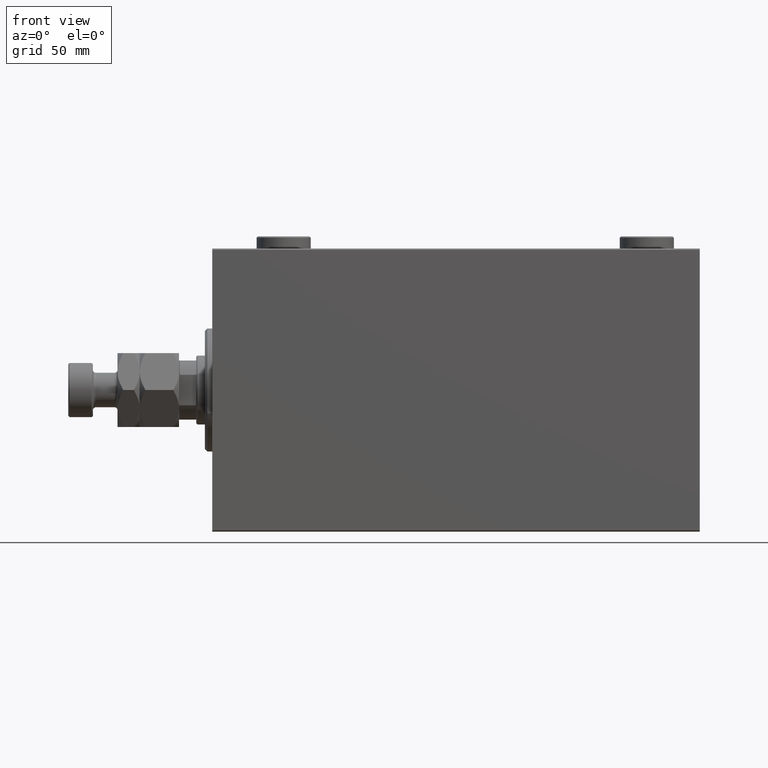
[diagram: clean part render]
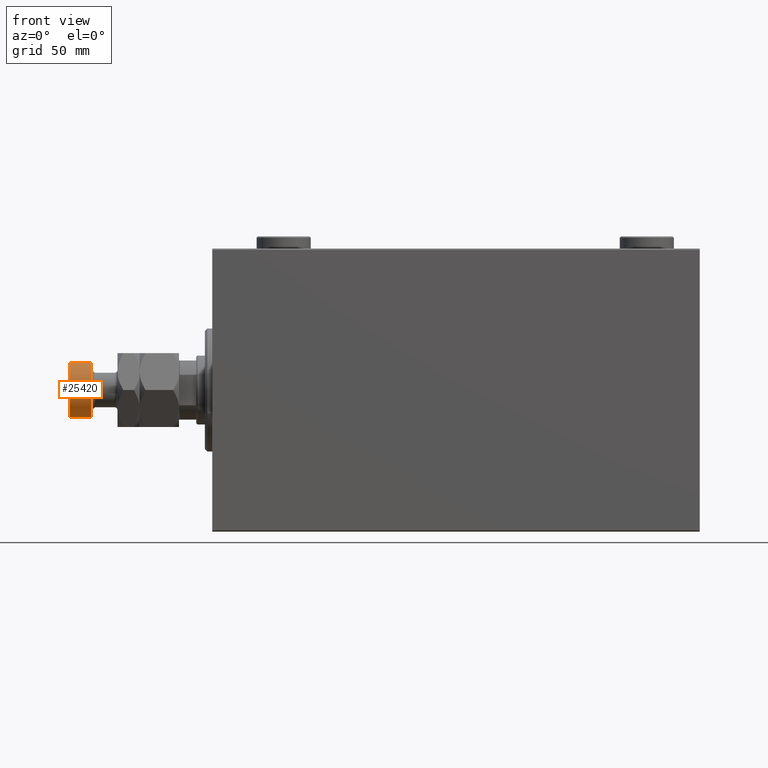
[diagram: same view with one face highlighted and labeled with its STEP entity id]
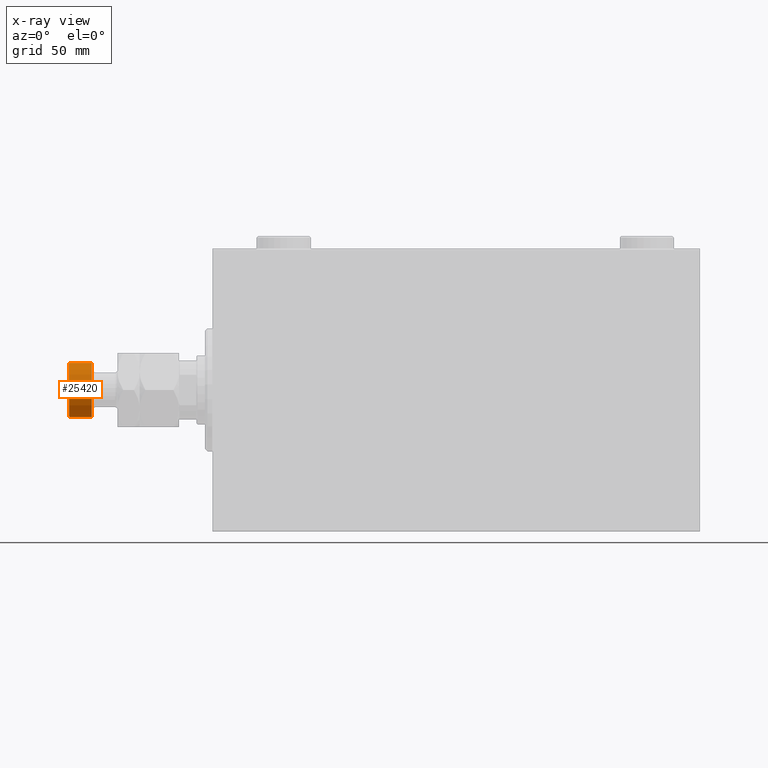
[diagram: x-ray of the same camera — body ghosted, the highlighted face saturated]
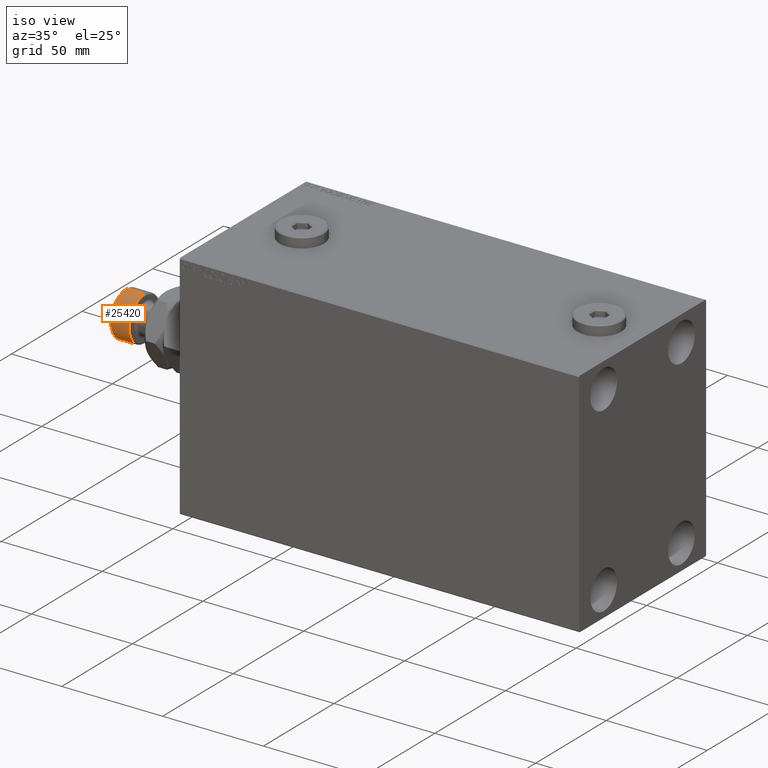
[diagram: same view with one face highlighted and labeled with its STEP entity id]
A machine part, front view. The second image highlights one B-rep face of the part: STEP entity #25420.
The next image is the same camera in x-ray: the body ghosted, the highlighted face saturated — about 0% of this face is hidden behind the body in this view.
A second angle (iso view) of the same face is appended — the face is thin or edge-on in the first view.
In plain terms, the highlighted cylindrical surface (edge-blend (fillet) strip) has radius 11 mm, axis along (1, -0, -0).
Its self-contained STEP definition (entity closure, byte-faithful):
#233 = CARTESIAN_POINT ( 'NONE',  ( -11.00000000000000000, 0.000000000000000000, 45.00000000000000711 ) ) ;
#1712 = CARTESIAN_POINT ( 'NONE',  ( 11.00000000000000000, 1.347111479062088405E-15, 44.50000000000001421 ) ) ;
#3420 = LINE ( 'NONE', #24544, #10523 ) ;
#5088 = AXIS2_PLACEMENT_3D ( 'NONE', #22659, #25978, #33370 ) ;
#5092 = FACE_OUTER_BOUND ( 'NONE', #16272, .T. ) ;
#10347 = CARTESIAN_POINT ( 'NONE',  ( 11.00000000000000000, 1.347111479062088405E-15, 35.50000000000001421 ) ) ;
#10523 = VECTOR ( 'NONE', #35724, 1000.000000000000000 ) ;
#11377 = LINE ( 'NONE', #233, #33942 ) ;
#13139 = ORIENTED_EDGE ( 'NONE', *, *, #27301, .T. ) ;
#13539 = DIRECTION ( 'NONE',  ( -0.000000000000000000, -0.000000000000000000, 1.000000000000000000 ) ) ;
#13940 = ORIENTED_EDGE ( 'NONE', *, *, #16843, .T. ) ;
#15080 = CYLINDRICAL_SURFACE ( 'NONE', #5088, 11.00000000000000000 ) ;
#16272 = EDGE_LOOP ( 'NONE', ( #46058, #22168, #13139, #13940 ) ) ;
#16843 = EDGE_CURVE ( 'NONE', #30912, #24325, #39087, .T. ) ;
#17014 = EDGE_CURVE ( 'NONE', #39631, #20245, #41244, .T. ) ;
#18585 = AXIS2_PLACEMENT_3D ( 'NONE', #43245, #13539, #46578 ) ;
#20245 = VERTEX_POINT ( 'NONE', #28025 ) ;
#20754 = AXIS2_PLACEMENT_3D ( 'NONE', #23929, #27497, #34633 ) ;
#22168 = ORIENTED_EDGE ( 'NONE', *, *, #17014, .T. ) ;
#22659 = CARTESIAN_POINT ( 'NONE',  ( 0.000000000000000000, 0.000000000000000000, 45.00000000000000711 ) ) ;
#23929 = CARTESIAN_POINT ( 'NONE',  ( 0.000000000000000000, 0.000000000000000000, 44.50000000000001421 ) ) ;
#24325 = VERTEX_POINT ( 'NONE', #10347 ) ;
#24544 = CARTESIAN_POINT ( 'NONE',  ( 11.00000000000000000, 1.347111479062088405E-15, 45.00000000000000711 ) ) ;
#25420 = ADVANCED_FACE ( 'NONE', ( #5092 ), #15080, .T. ) ;
#25978 = DIRECTION ( 'NONE',  ( -0.000000000000000000, -0.000000000000000000, -1.000000000000000000 ) ) ;
#27301 = EDGE_CURVE ( 'NONE', #20245, #30912, #11377, .T. ) ;
#27497 = DIRECTION ( 'NONE',  ( 0.000000000000000000, 0.000000000000000000, -1.000000000000000000 ) ) ;
#28025 = CARTESIAN_POINT ( 'NONE',  ( -11.00000000000000000, 0.000000000000000000, 44.50000000000001421 ) ) ;
#30912 = VERTEX_POINT ( 'NONE', #34089 ) ;
#32578 = EDGE_CURVE ( 'NONE', #39631, #24325, #3420, .T. ) ;
#33370 = DIRECTION ( 'NONE',  ( -1.000000000000000000, 0.000000000000000000, 0.000000000000000000 ) ) ;
#33942 = VECTOR ( 'NONE', #36336, 1000.000000000000000 ) ;
#34089 = CARTESIAN_POINT ( 'NONE',  ( -11.00000000000000000, 0.000000000000000000, 35.50000000000001421 ) ) ;
#34633 = DIRECTION ( 'NONE',  ( 1.000000000000000000, 0.000000000000000000, 0.000000000000000000 ) ) ;
#35724 = DIRECTION ( 'NONE',  ( -0.000000000000000000, -0.000000000000000000, -1.000000000000000000 ) ) ;
#36336 = DIRECTION ( 'NONE',  ( -0.000000000000000000, -0.000000000000000000, -1.000000000000000000 ) ) ;
#39087 = CIRCLE ( 'NONE', #18585, 11.00000000000000000 ) ;
#39631 = VERTEX_POINT ( 'NONE', #1712 ) ;
#41244 = CIRCLE ( 'NONE', #20754, 11.00000000000000000 ) ;
#43245 = CARTESIAN_POINT ( 'NONE',  ( 0.000000000000000000, 0.000000000000000000, 35.50000000000001421 ) ) ;
#46058 = ORIENTED_EDGE ( 'NONE', *, *, #32578, .F. ) ;
#46578 = DIRECTION ( 'NONE',  ( 1.000000000000000000, 0.000000000000000000, 0.000000000000000000 ) ) ;